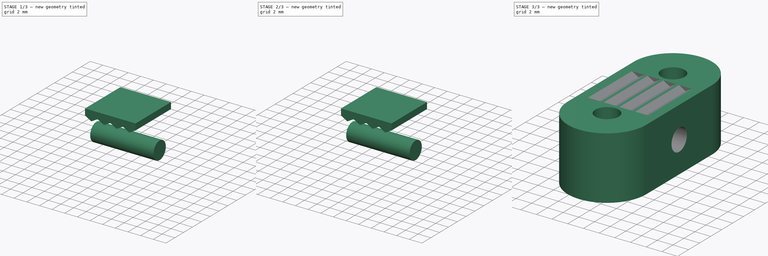
[diagram: build sequence overview — one tinted view per stage of 3, left to right]
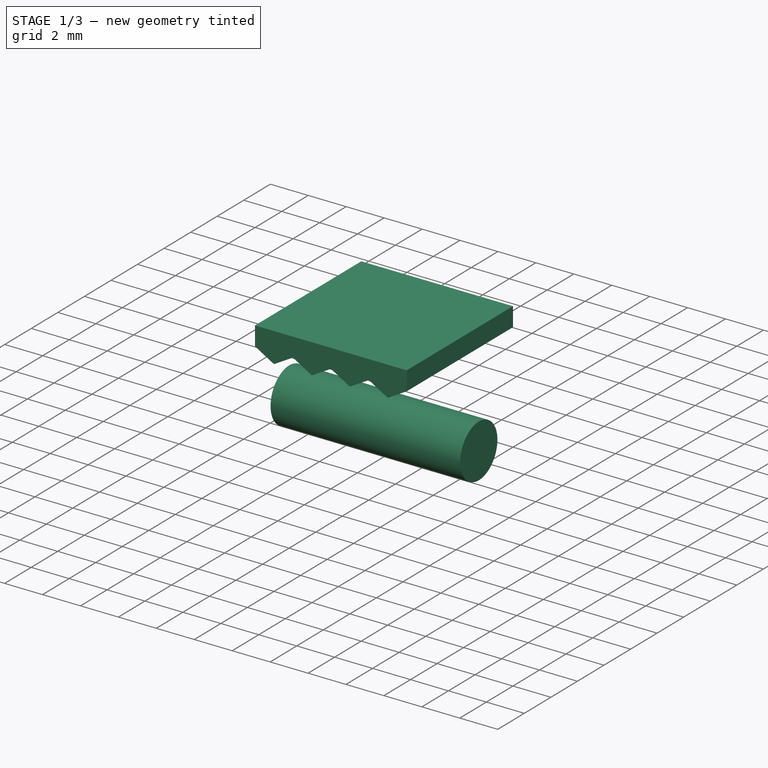
[diagram: stage 1 of 3 — iso view after this stage's code; geometry added in this stage tinted green]
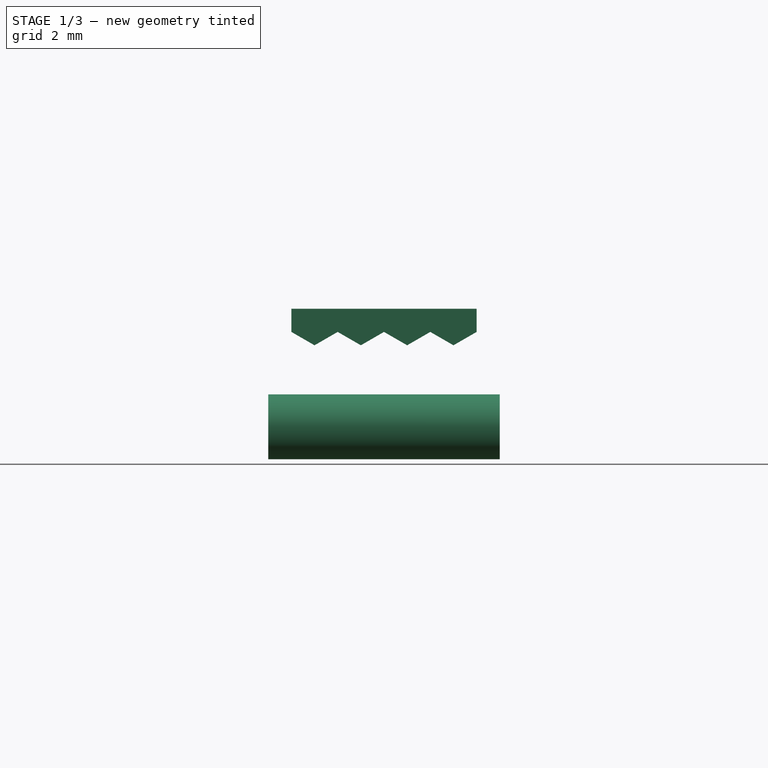
[diagram: stage 1 of 3 — front view after this stage's code; geometry added in this stage tinted green]
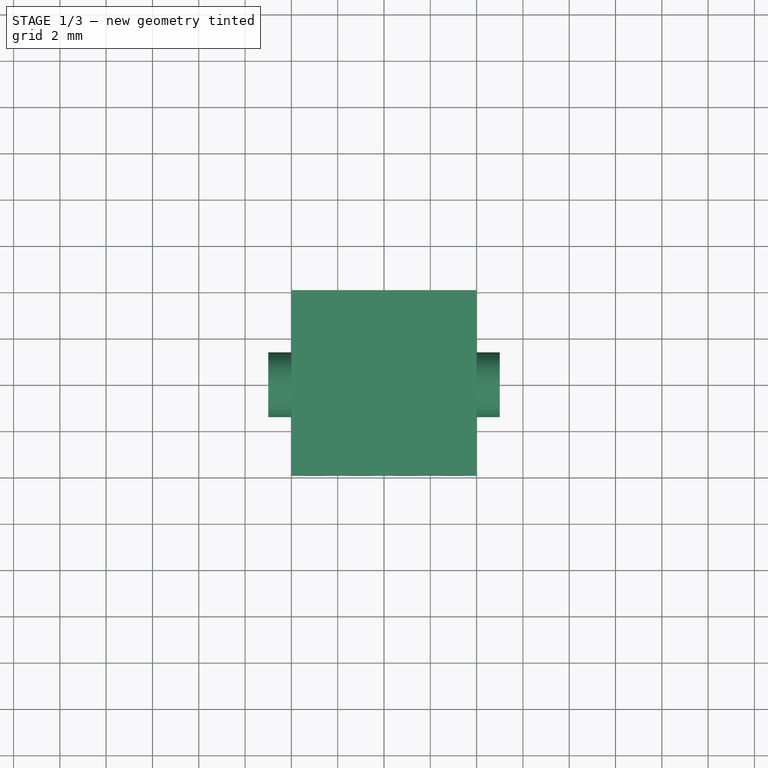
[diagram: stage 1 of 3 — top view after this stage's code; geometry added in this stage tinted green]
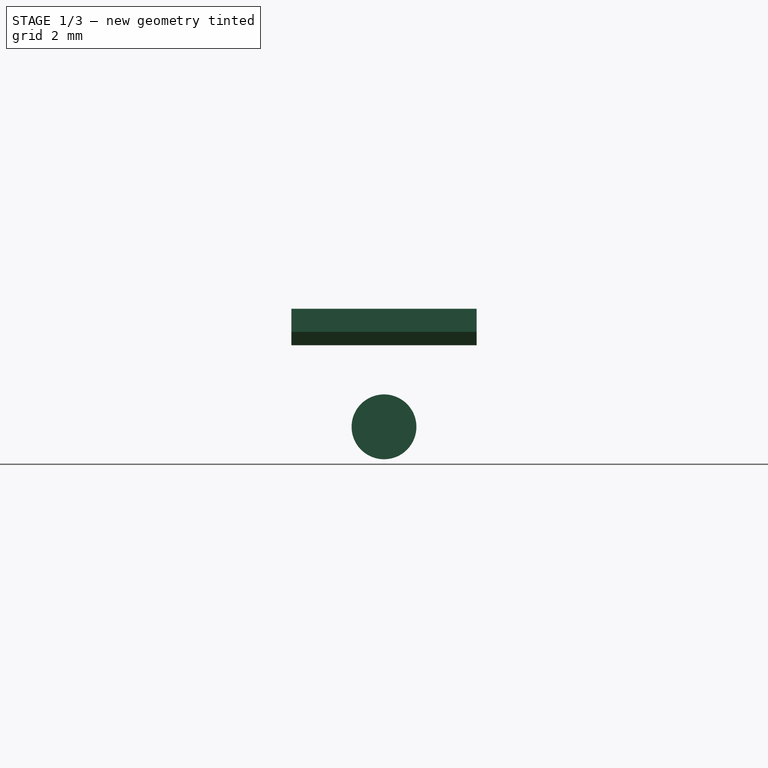
[diagram: stage 1 of 3 — right view after this stage's code; geometry added in this stage tinted green]
FCSTD DOCUMENT  (FreeCAD 0.16R6707 (Git))
Label: BeltTensioner
License: All rights reserved
LicenseURL: http://en.wikipedia.org/wiki/All_rights_reserved
objects: Sketcher::SketchObject×3, PartDesign::Pad×3, Part::MultiFuse×1, Part::Cut×1
note: 11 computed .brp shape members not serialized (recipe doc carries the construction recipe); baked Part::Feature solids carry a one-line shape summary decoded from their .brp

FEATURE [Sketcher::SketchObject] Sketch001
  Placement = pos=(0,0,0) rot=(0.57735,0.57735,0.57735;2.0944rad)
  sketch-geometry (1):
    g0: Circle CenterX=6 CenterY=4 CenterZ=0 NormalX=0 NormalY=0 NormalZ=1 Radius=1.4
  constraints (3):
    c: DistanceX(g-1,g0) = 6
    c: DistanceY(g-1,g0) = 4
    c: Radius(g0) = 1.4
FEATURE [PartDesign::Pad] Pad001
  Length = 10
  Length2 = 100
  Midplane = true
  Placement = pos=(0,0,0) rot=(0.57735,0.57735,0.57735;2.0944rad)
  Reversed = true
  Sketch = -> Sketch001
  Type = 0
FEATURE [Sketcher::SketchObject] Sketch002
  Placement = pos=(-6,10,4) rot=(1,0,0;1.5708rad)
  sketch-geometry (11):
    g0: LineSegment StartX=2 StartY=4.1 StartZ=0 EndX=3 EndY=3.52265 EndZ=0
    g1: LineSegment StartX=3 StartY=3.52265 StartZ=0 EndX=4 EndY=4.1 EndZ=0
    g2: LineSegment StartX=4 StartY=4.1 StartZ=0 EndX=5 EndY=3.52265 EndZ=0
    g3: LineSegment StartX=5 StartY=3.52265 StartZ=0 EndX=6 EndY=4.1 EndZ=0
    g4: LineSegment StartX=6 StartY=4.1 StartZ=0 EndX=7 EndY=3.52265 EndZ=0
    g5: LineSegment StartX=7 StartY=3.52265 StartZ=0 EndX=8 EndY=4.1 EndZ=0
    g6: LineSegment StartX=8 StartY=4.1 StartZ=0 EndX=9 EndY=3.52265 EndZ=0
    g7: LineSegment StartX=9 StartY=3.52265 StartZ=0 EndX=10 EndY=4.1 EndZ=0
    g8: LineSegment StartX=10 StartY=4.1 StartZ=0 EndX=10 EndY=5.1 EndZ=0
    g9: LineSegment StartX=10 StartY=5.1 StartZ=0 EndX=2 EndY=5.1 EndZ=0
    g10: LineSegment StartX=2 StartY=5.1 StartZ=0 EndX=2 EndY=4.1 EndZ=0
  constraints (34):
    c: Coincident(g0,g1)
    c: Coincident(g1,g2)
    c: Coincident(g2,g3)
    c: Coincident(g3,g4)
    c: Coincident(g5,g6)
    c: Coincident(g6,g7)
    c: Coincident(g7,g8)
    c: Vertical(g8)
    c: Coincident(g8,g9)
    c: Horizontal(g9)
    c: Coincident(g9,g10)
    c: Coincident(g10,g0)
    c: Angle(g1,g0) = 2.0944
    c: Angle(g3,g2) = 2.0944
    c: Angle(g7,g6) = 2.0944
    c: Equal(g0,g1)
    c: Equal(g1,g2)
    c: Equal(g2,g3)
    c: Equal(g3,g4)
    c: Equal(g5,g6)
    c: Equal(g6,g7)
    c: Vertical(g10)
    c: DistanceX(g9,g9) = 8
    c: DistanceY(g7,g0) = 0
    c: DistanceY(g2,g0) = 0
    c: DistanceY(g2,g4) = 0
    c: DistanceY(g6,g5) = 0
    c: DistanceY(g8,g8) = 1
    c: DistanceX(g-1,g9) = 2
    c: DistanceY(g-1,g9) = 5.1
    c: DistanceY(g5,g4) = 0
    c: Coincident(g4,g5)
    c: DistanceY(g1,g3) = 0
    c: DistanceY(g3,g5) = 0
FEATURE [PartDesign::Pad] Pad002
  Length = 8
  Length2 = 100
  Placement = pos=(-6,10,4) rot=(1,0,0;1.5708rad)
  Sketch = -> Sketch002
  Type = 0
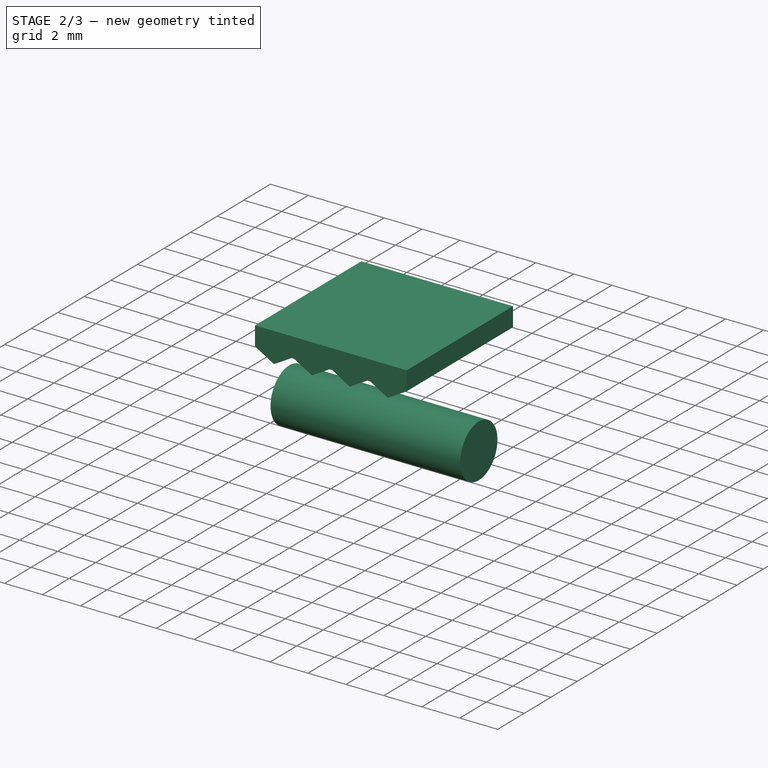
[diagram: stage 2 of 3 — iso view after this stage's code; geometry added in this stage tinted green]
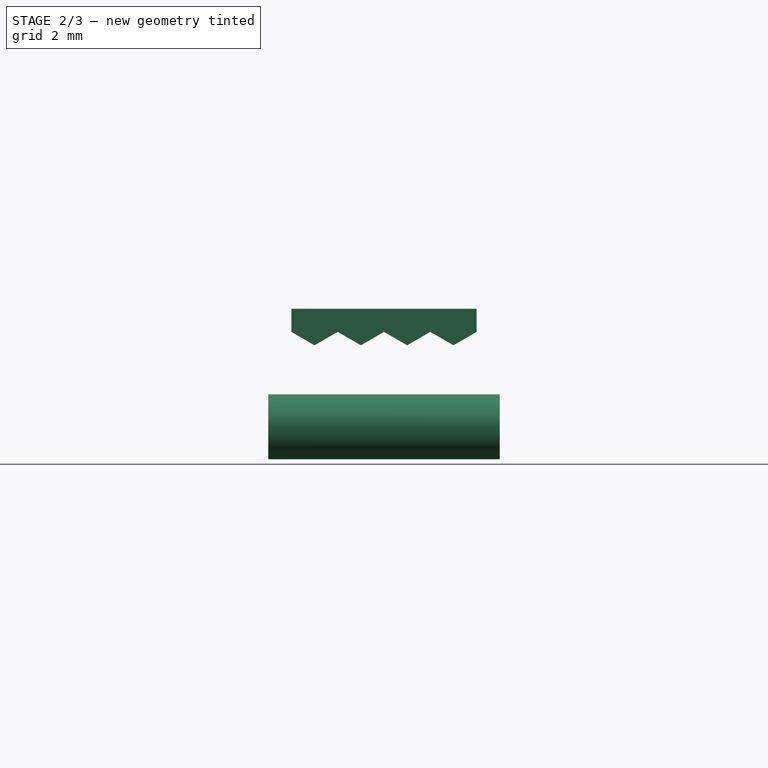
[diagram: stage 2 of 3 — front view after this stage's code; geometry added in this stage tinted green]
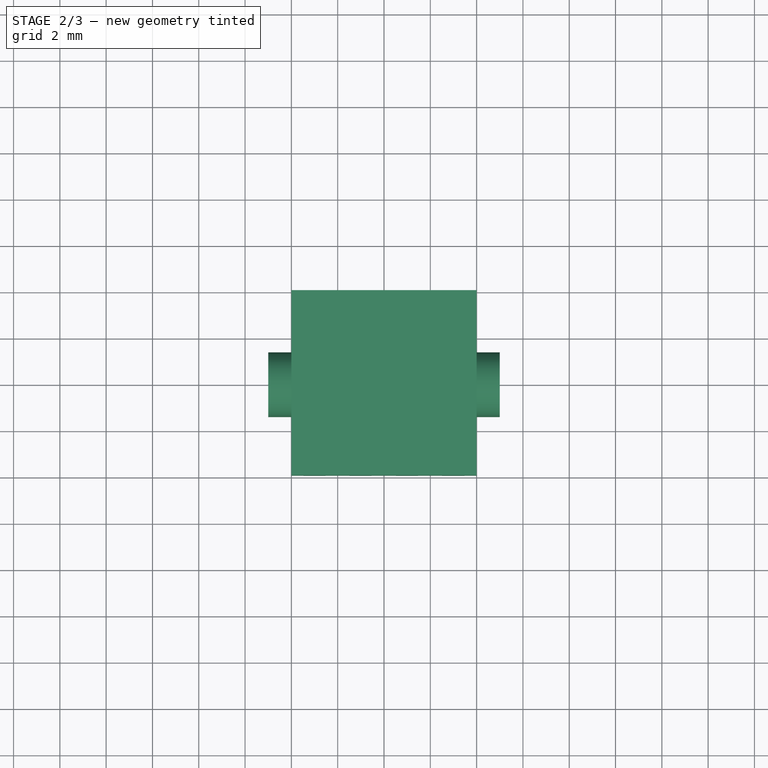
[diagram: stage 2 of 3 — top view after this stage's code; geometry added in this stage tinted green]
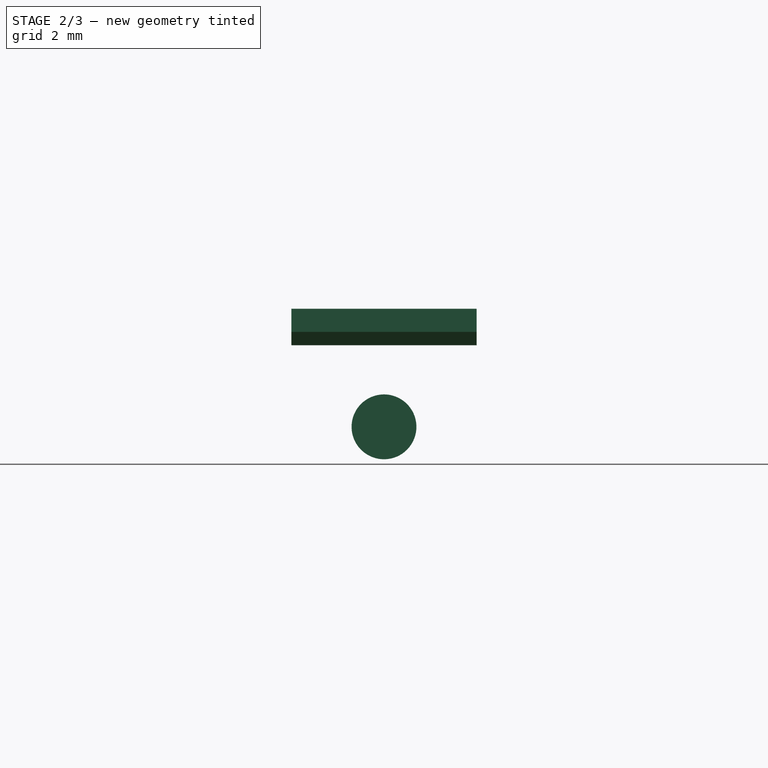
[diagram: stage 2 of 3 — right view after this stage's code; geometry added in this stage tinted green]
FEATURE [Part::MultiFuse] Fusion
  Shapes = -> [Pad001,Pad002]
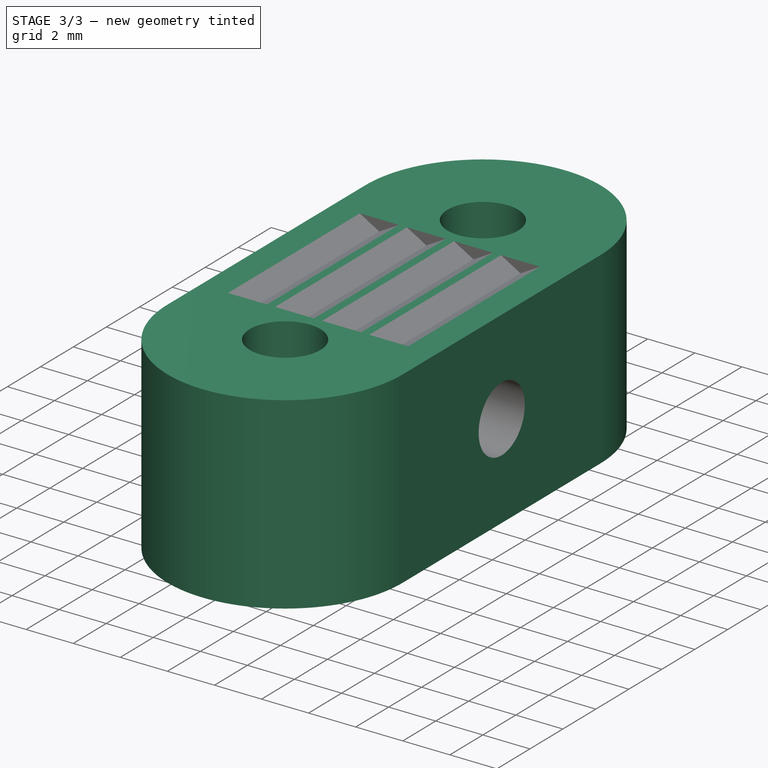
[diagram: stage 3 of 3 — iso view after this stage's code; geometry added in this stage tinted green]
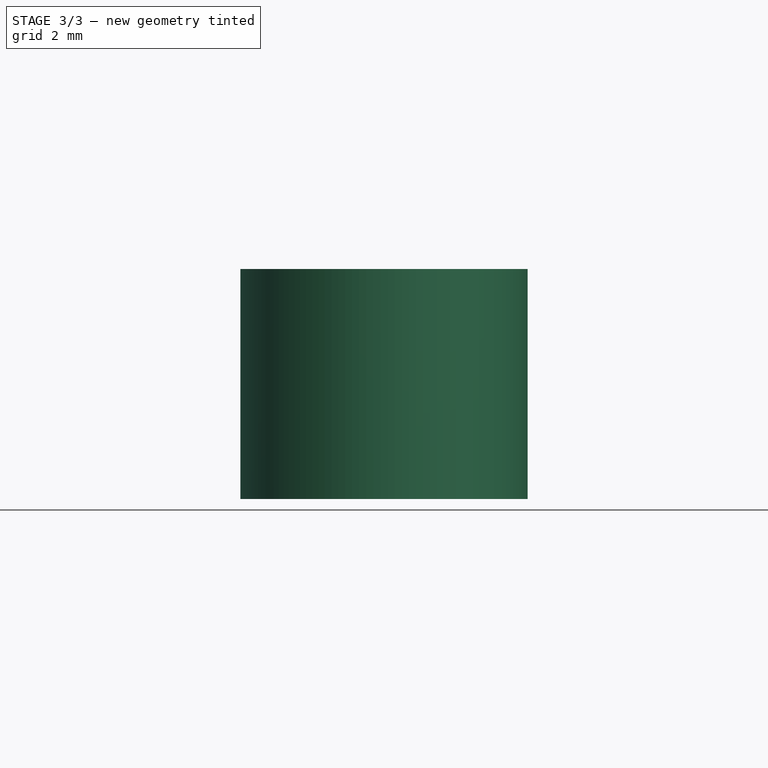
[diagram: stage 3 of 3 — front view after this stage's code; geometry added in this stage tinted green]
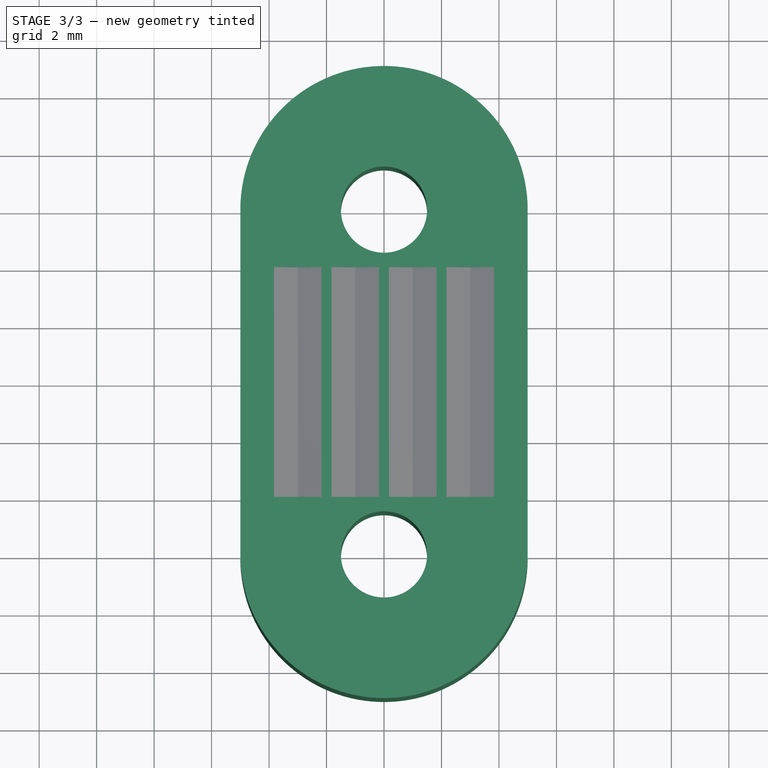
[diagram: stage 3 of 3 — top view after this stage's code; geometry added in this stage tinted green]
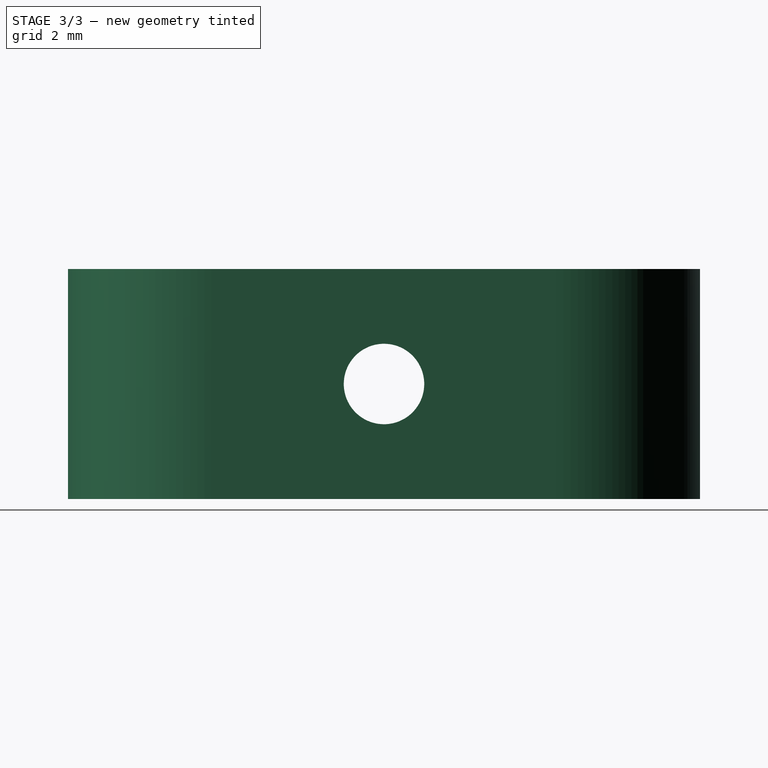
[diagram: stage 3 of 3 — right view after this stage's code; geometry added in this stage tinted green]
FEATURE [Sketcher::SketchObject] Sketch
  sketch-geometry (6):
    g0: ArcOfCircle CenterX=0 CenterY=12 CenterZ=0 NormalX=0 NormalY=0 NormalZ=1 Radius=5 StartAngle=0 EndAngle=3.14159
    g1: ArcOfCircle CenterX=0 CenterY=0 CenterZ=0 NormalX=0 NormalY=0 NormalZ=1 Radius=5 StartAngle=3.14159 EndAngle=6.28319
    g2: LineSegment StartX=-5 StartY=12 StartZ=0 EndX=-5 EndY=1e-12 EndZ=0
    g3: LineSegment StartX=5 StartY=12 StartZ=0 EndX=5 EndY=1e-12 EndZ=0
    g4: Circle CenterX=0 CenterY=12 CenterZ=0 NormalX=0 NormalY=0 NormalZ=1 Radius=1.5
    g5: Circle CenterX=0 CenterY=0 CenterZ=0 NormalX=0 NormalY=0 NormalZ=1 Radius=1.5
  constraints (13):
    c: Tangent(g0,g3) = 1.5708
    c: Tangent(g0,g2) = -1.5708
    c: Tangent(g2,g1) = -1.5708
    c: Tangent(g3,g1) = 1.5708
    c: Vertical(g2)
    c: Equal(g0,g1)
    c: Coincident(g5,g1)
    c: Coincident(g4,g0)
    c: Radius(g4) = 1.5
    c: Equal(g4,g5)
    c: Radius(g1) = 5
    c: DistanceY(g1,g0) = 12
    c: Coincident(g1,g-1)
FEATURE [PartDesign::Pad] Pad
  Length = 8
  Length2 = 100
  Sketch = -> Sketch
  Type = 0
FEATURE [Part::Cut] Cut
  Base = -> Pad
  Tool = -> Fusion
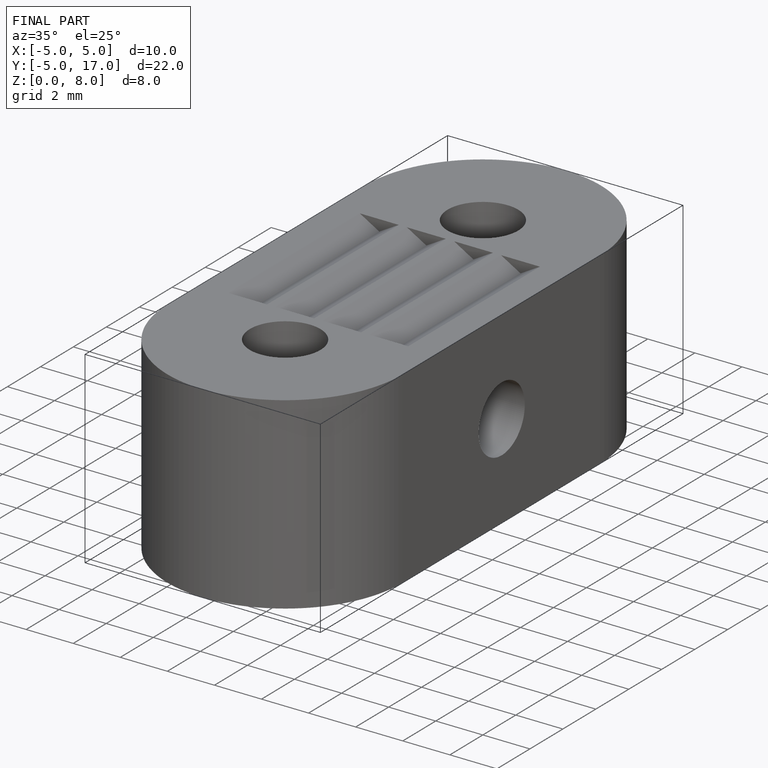
[diagram: finished part — iso view with bounding-box wireframe]
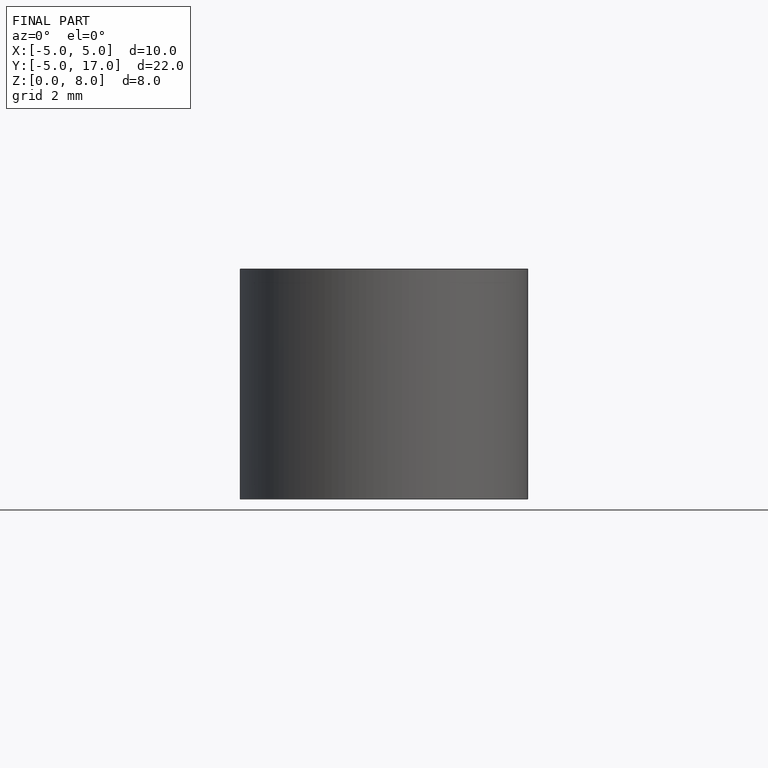
[diagram: finished part — front view with bounding-box wireframe]
